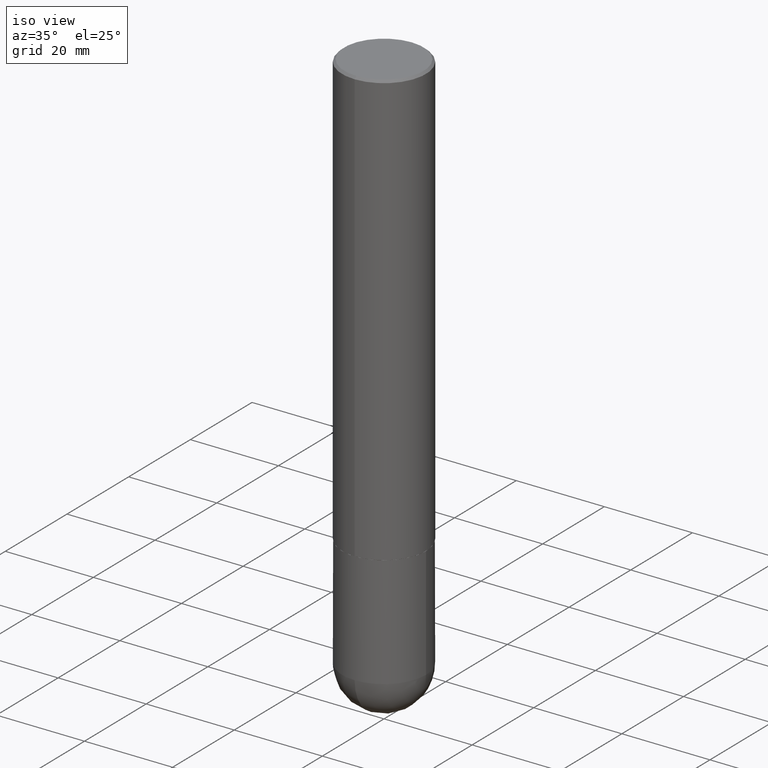
[diagram: clean part render]
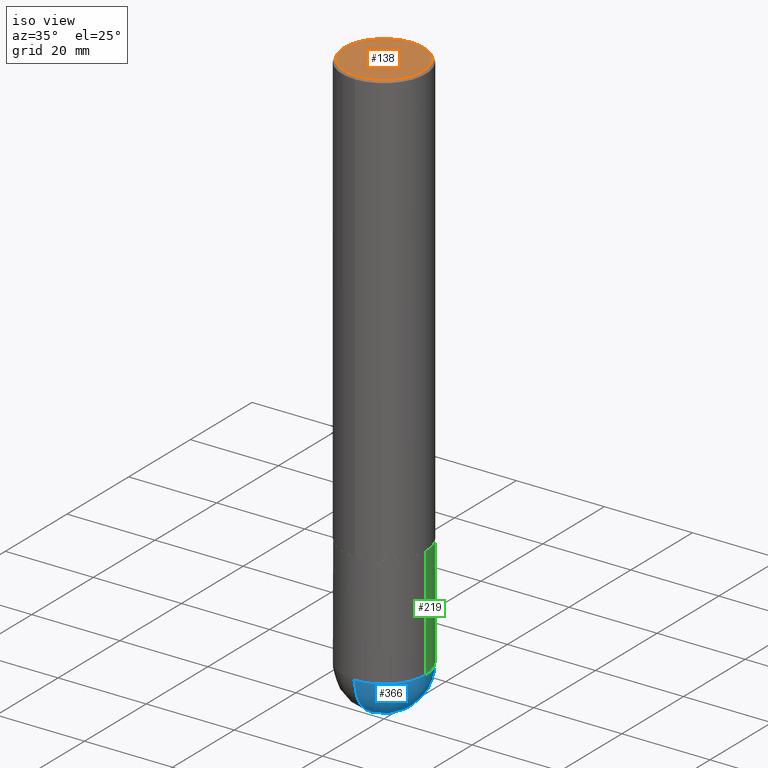
[diagram: same view with three faces highlighted in distinct colors, each labeled with its STEP entity id]
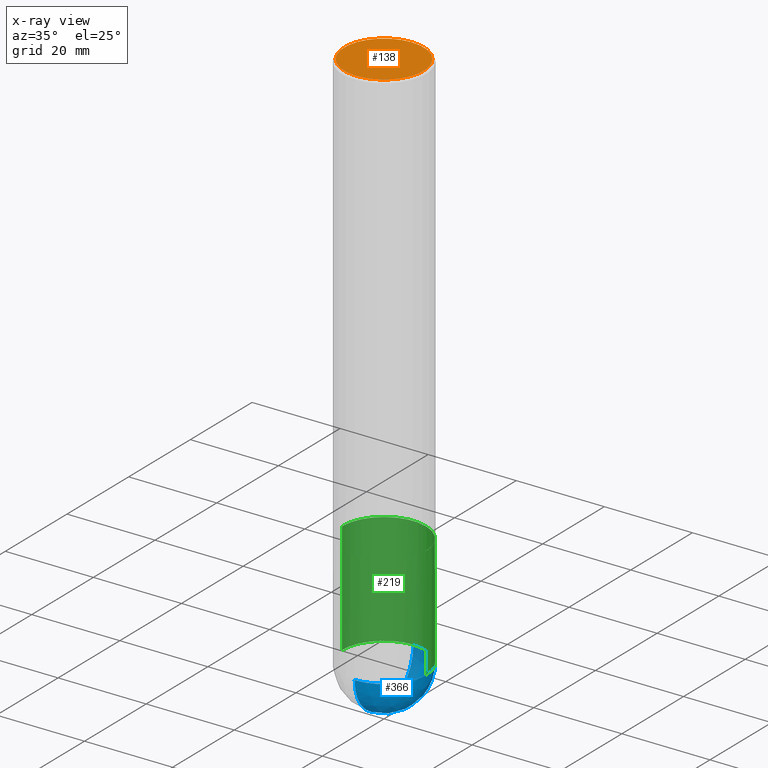
[diagram: x-ray of the same camera — body ghosted, the three highlighted faces saturated]
A machine part, iso view with three faces highlighted in distinct colors.
The next image is the same camera in x-ray (body ghosted, the three faces saturated) — at least one of them is partly hidden behind the body in this view.
Their STEP definitions:

[orange] entity #138 — the highlighted planar face has unit normal (0, -0, -1).
#5 = EDGE_LOOP ( 'NONE', ( #336, #18 ) ) ;
#9 = EDGE_CURVE ( 'NONE', #362, #295, #199, .T. ) ;
#14 = CARTESIAN_POINT ( 'NONE',  ( 2.478951750578625787E-15, 0.3550000000000001488, -1.284288125001718683E-15 ) ) ;
#16 = AXIS2_PLACEMENT_3D ( 'NONE', #91, #58, #154 ) ;
#18 = ORIENTED_EDGE ( 'NONE', *, *, #9, .T. ) ;
#58 = DIRECTION ( 'NONE',  ( -2.445496861697833263E-29, 3.491441161752143275E-15, 1.000000000000000000 ) ) ;
#74 = PLANE ( 'NONE',  #389 ) ;
#91 = CARTESIAN_POINT ( 'NONE',  ( 2.192461916690650386E-45, -3.130182623171802630E-31, -8.965302515941450071E-17 ) ) ;
#99 = EDGE_CURVE ( 'NONE', #295, #362, #104, .T. ) ;
#104 = CIRCLE ( 'NONE', #304, 0.3550000000000001488 ) ;
#121 = DIRECTION ( 'NONE',  ( -6.982962677686266711E-15, -1.000000000000000000, 3.491441161752143275E-15 ) ) ;
#138 = ADVANCED_FACE ( 'NONE', ( #166 ), #74, .F. ) ;
#154 = DIRECTION ( 'NONE',  ( -6.982962677686266711E-15, -1.000000000000000000, 3.491441161752143275E-15 ) ) ;
#159 = CARTESIAN_POINT ( 'NONE',  ( 2.192461916690650386E-45, -3.130182623171802630E-31, -8.965302515941450071E-17 ) ) ;
#166 = FACE_OUTER_BOUND ( 'NONE', #5, .T. ) ;
#199 = CIRCLE ( 'NONE', #16, 0.3550000000000001488 ) ;
#231 = DIRECTION ( 'NONE',  ( -2.445496861697833263E-29, 3.491441161752143275E-15, 1.000000000000000000 ) ) ;
#273 = DIRECTION ( 'NONE',  ( 2.445496861697832703E-29, -3.491441161752143669E-15, -1.000000000000000000 ) ) ;
#280 = DIRECTION ( 'NONE',  ( 6.982962677686265922E-15, 1.000000000000000000, -3.491441161752143669E-15 ) ) ;
#295 = VERTEX_POINT ( 'NONE', #388 ) ;
#304 = AXIS2_PLACEMENT_3D ( 'NONE', #159, #231, #121 ) ;
#336 = ORIENTED_EDGE ( 'NONE', *, *, #99, .T. ) ;
#362 = VERTEX_POINT ( 'NONE', #378 ) ;
#378 = CARTESIAN_POINT ( 'NONE',  ( -2.504081769186609399E-15, -0.3550000000000001488, 1.149808587262596747E-15 ) ) ;
#388 = CARTESIAN_POINT ( 'NONE',  ( 2.548781377355488296E-15, 0.3550000000000001488, -1.329114637581425995E-15 ) ) ;
#389 = AXIS2_PLACEMENT_3D ( 'NONE', #14, #273, #280 ) ;

[blue] entity #366 — the highlighted spherical surface has radius 9.525 mm.
#30 = CIRCLE ( 'NONE', #401, 0.3750000000000001110 ) ;
#40 = DIRECTION ( 'NONE',  ( -2.445468806185136597E-29, 3.491481338843145583E-15, 1.000000000000000000 ) ) ;
#44 = CARTESIAN_POINT ( 'NONE',  ( 1.252362582248019568E-28, -1.878149726958255384E-14, -5.250000000000000000 ) ) ;
#50 = DIRECTION ( 'NONE',  ( -1.000000000000000000, 7.105427357601001070E-15, -4.926315508542082329E-29 ) ) ;
#81 = VERTEX_POINT ( 'NONE', #189 ) ;
#84 = SPHERICAL_SURFACE ( 'NONE', #281, 0.3750000000000001110 ) ;
#123 = ORIENTED_EDGE ( 'NONE', *, *, #192, .F. ) ;
#132 = AXIS2_PLACEMENT_3D ( 'NONE', #276, #172, #369 ) ;
#145 = ORIENTED_EDGE ( 'NONE', *, *, #179, .F. ) ;
#146 = DIRECTION ( 'NONE',  ( 6.982962677686265922E-15, 1.000000000000000000, -2.913971193241879977E-15 ) ) ;
#158 = VERTEX_POINT ( 'NONE', #376 ) ;
#172 = DIRECTION ( 'NONE',  ( -2.445468806185136597E-29, 3.491481338843145583E-15, 1.000000000000000000 ) ) ;
#179 = EDGE_CURVE ( 'NONE', #405, #81, #351, .T. ) ;
#183 = EDGE_CURVE ( 'NONE', #340, #405, #30, .T. ) ;
#184 = EDGE_LOOP ( 'NONE', ( #258, #380, #123, #145 ) ) ;
#189 = CARTESIAN_POINT ( 'NONE',  ( 0.3750000000000001110, -1.789384186157111051E-14, -4.875000000000000000 ) ) ;
#192 = EDGE_CURVE ( 'NONE', #81, #158, #267, .T. ) ;
#212 = DIRECTION ( 'NONE',  ( 1.000000000000000000, -6.982962677686265922E-15, 4.883557194083112340E-29 ) ) ;
#213 = AXIS2_PLACEMENT_3D ( 'NONE', #343, #40, #347 ) ;
#227 = CARTESIAN_POINT ( 'NONE',  ( -2.664535259100258157E-15, -0.3750000000000173195, -4.874999999999999112 ) ) ;
#228 = CIRCLE ( 'NONE', #261, 0.3750000000000001110 ) ;
#241 = CARTESIAN_POINT ( 'NONE',  ( 1.159054065223865578E-28, -1.749515389500038536E-14, -4.875000000000000000 ) ) ;
#257 = EDGE_CURVE ( 'NONE', #340, #158, #228, .T. ) ;
#258 = ORIENTED_EDGE ( 'NONE', *, *, #183, .F. ) ;
#261 = AXIS2_PLACEMENT_3D ( 'NONE', #241, #212, #274 ) ;
#267 = CIRCLE ( 'NONE', #132, 0.3750000000000001110 ) ;
#274 = DIRECTION ( 'NONE',  ( 6.982962677686265922E-15, 1.000000000000000000, 0.000000000000000000 ) ) ;
#275 = CARTESIAN_POINT ( 'NONE',  ( 1.159054065223865578E-28, -1.749515389500038536E-14, -4.875000000000000000 ) ) ;
#276 = CARTESIAN_POINT ( 'NONE',  ( 1.192166043015254091E-28, -1.702097152686033664E-14, -4.875000000000000000 ) ) ;
#281 = AXIS2_PLACEMENT_3D ( 'NONE', #275, #399, #146 ) ;
#309 = CARTESIAN_POINT ( 'NONE',  ( 1.159054065223865578E-28, -1.749515389500038536E-14, -4.875000000000000000 ) ) ;
#313 = FACE_OUTER_BOUND ( 'NONE', #184, .T. ) ;
#340 = VERTEX_POINT ( 'NONE', #44 ) ;
#343 = CARTESIAN_POINT ( 'NONE',  ( 1.192166043015254091E-28, -1.702097152686033664E-14, -4.875000000000000000 ) ) ;
#346 = DIRECTION ( 'NONE',  ( -7.105427357601001070E-15, -1.000000000000000000, 0.000000000000000000 ) ) ;
#347 = DIRECTION ( 'NONE',  ( 1.000000000000000000, -6.982962677686260400E-15, 0.000000000000000000 ) ) ;
#351 = CIRCLE ( 'NONE', #213, 0.3750000000000001110 ) ;
#366 = ADVANCED_FACE ( 'NONE', ( #313 ), #84, .T. ) ;
#369 = DIRECTION ( 'NONE',  ( 1.000000000000000000, -6.982962677686260400E-15, 0.000000000000000000 ) ) ;
#376 = CARTESIAN_POINT ( 'NONE',  ( 2.618611004132467951E-15, 0.3749999999999829026, -4.875000000000001776 ) ) ;
#380 = ORIENTED_EDGE ( 'NONE', *, *, #257, .T. ) ;
#399 = DIRECTION ( 'NONE',  ( -1.000000000000000000, 6.982962677686265922E-15, -4.883557194083112340E-29 ) ) ;
#401 = AXIS2_PLACEMENT_3D ( 'NONE', #309, #50, #346 ) ;
#405 = VERTEX_POINT ( 'NONE', #227 ) ;

[green] entity #219 — the highlighted cylindrical surface (partial cylindrical patch) has radius 9.525 mm, axis along (-0, 0, 1).
#1 = DIRECTION ( 'NONE',  ( -2.445468806185136597E-29, 3.491481338843145583E-15, 1.000000000000000000 ) ) ;
#2 = EDGE_CURVE ( 'NONE', #81, #117, #255, .T. ) ;
#24 = ORIENTED_EDGE ( 'NONE', *, *, #326, .T. ) ;
#25 = CARTESIAN_POINT ( 'NONE',  ( 0.000000000000000000, 0.000000000000000000, 0.000000000000000000 ) ) ;
#36 = CARTESIAN_POINT ( 'NONE',  ( 0.3750000000000001110, -2.618611004132350411E-15, 1.828566290923476483E-29 ) ) ;
#47 = DIRECTION ( 'NONE',  ( 1.000000000000000000, -6.982962677686265922E-15, 4.876176775795935793E-29 ) ) ;
#48 = EDGE_CURVE ( 'NONE', #158, #300, #252, .T. ) ;
#76 = LINE ( 'NONE', #403, #155 ) ;
#79 = AXIS2_PLACEMENT_3D ( 'NONE', #25, #277, #47 ) ;
#81 = VERTEX_POINT ( 'NONE', #189 ) ;
#86 = CARTESIAN_POINT ( 'NONE',  ( 9.476191623967404313E-29, -1.352949018801718908E-14, -3.875000000000000000 ) ) ;
#87 = ORIENTED_EDGE ( 'NONE', *, *, #122, .F. ) ;
#100 = VERTEX_POINT ( 'NONE', #223 ) ;
#117 = VERTEX_POINT ( 'NONE', #361 ) ;
#122 = EDGE_CURVE ( 'NONE', #117, #100, #315, .T. ) ;
#132 = AXIS2_PLACEMENT_3D ( 'NONE', #276, #172, #369 ) ;
#140 = VECTOR ( 'NONE', #385, 39.37007874015748143 ) ;
#143 = FACE_OUTER_BOUND ( 'NONE', #173, .T. ) ;
#155 = VECTOR ( 'NONE', #169, 39.37007874015748143 ) ;
#158 = VERTEX_POINT ( 'NONE', #376 ) ;
#169 = DIRECTION ( 'NONE',  ( -2.445468806185136877E-29, 3.491481338843145188E-15, 1.000000000000000000 ) ) ;
#172 = DIRECTION ( 'NONE',  ( -2.445468806185136597E-29, 3.491481338843145583E-15, 1.000000000000000000 ) ) ;
#173 = EDGE_LOOP ( 'NONE', ( #214, #24, #87, #250, #196 ) ) ;
#188 = DIRECTION ( 'NONE',  ( -2.445468806185136597E-29, 3.491481338843145583E-15, 1.000000000000000000 ) ) ;
#189 = CARTESIAN_POINT ( 'NONE',  ( 0.3750000000000001110, -1.789384186157111051E-14, -4.875000000000000000 ) ) ;
#192 = EDGE_CURVE ( 'NONE', #81, #158, #267, .T. ) ;
#196 = ORIENTED_EDGE ( 'NONE', *, *, #192, .T. ) ;
#198 = CARTESIAN_POINT ( 'NONE',  ( -0.3750000000000001110, -1.261069559833838637E-14, -4.875000000000000000 ) ) ;
#214 = ORIENTED_EDGE ( 'NONE', *, *, #48, .T. ) ;
#219 = ADVANCED_FACE ( 'NONE', ( #143 ), #318, .T. ) ;
#223 = CARTESIAN_POINT ( 'NONE',  ( -0.3750000000000000555, -1.261069559833838480E-14, -3.875000000000000000 ) ) ;
#250 = ORIENTED_EDGE ( 'NONE', *, *, #2, .F. ) ;
#252 = CIRCLE ( 'NONE', #279, 0.3750000000000001110 ) ;
#255 = LINE ( 'NONE', #36, #140 ) ;
#267 = CIRCLE ( 'NONE', #132, 0.3750000000000001110 ) ;
#276 = CARTESIAN_POINT ( 'NONE',  ( 1.192166043015254091E-28, -1.702097152686033664E-14, -4.875000000000000000 ) ) ;
#277 = DIRECTION ( 'NONE',  ( -2.445468806185136597E-29, 3.491481338843145583E-15, 1.000000000000000000 ) ) ;
#279 = AXIS2_PLACEMENT_3D ( 'NONE', #387, #1, #302 ) ;
#288 = DIRECTION ( 'NONE',  ( 1.000000000000000000, -6.982962677686266711E-15, 0.000000000000000000 ) ) ;
#300 = VERTEX_POINT ( 'NONE', #198 ) ;
#302 = DIRECTION ( 'NONE',  ( 1.000000000000000000, -6.982962677686260400E-15, 0.000000000000000000 ) ) ;
#315 = CIRCLE ( 'NONE', #396, 0.3750000000000000555 ) ;
#318 = CYLINDRICAL_SURFACE ( 'NONE', #79, 0.3750000000000001110 ) ;
#326 = EDGE_CURVE ( 'NONE', #300, #100, #76, .T. ) ;
#361 = CARTESIAN_POINT ( 'NONE',  ( 0.3750000000000000555, -1.614810119214954068E-14, -3.875000000000000000 ) ) ;
#369 = DIRECTION ( 'NONE',  ( 1.000000000000000000, -6.982962677686260400E-15, 0.000000000000000000 ) ) ;
#376 = CARTESIAN_POINT ( 'NONE',  ( 2.618611004132467951E-15, 0.3749999999999829026, -4.875000000000001776 ) ) ;
#385 = DIRECTION ( 'NONE',  ( -2.445468806185136877E-29, 3.491481338843145188E-15, 1.000000000000000000 ) ) ;
#387 = CARTESIAN_POINT ( 'NONE',  ( 1.192166043015254091E-28, -1.702097152686033664E-14, -4.875000000000000000 ) ) ;
#396 = AXIS2_PLACEMENT_3D ( 'NONE', #86, #188, #288 ) ;
#403 = CARTESIAN_POINT ( 'NONE',  ( -0.3750000000000001110, 2.664535259100376486E-15, -1.844600658845590159E-29 ) ) ;